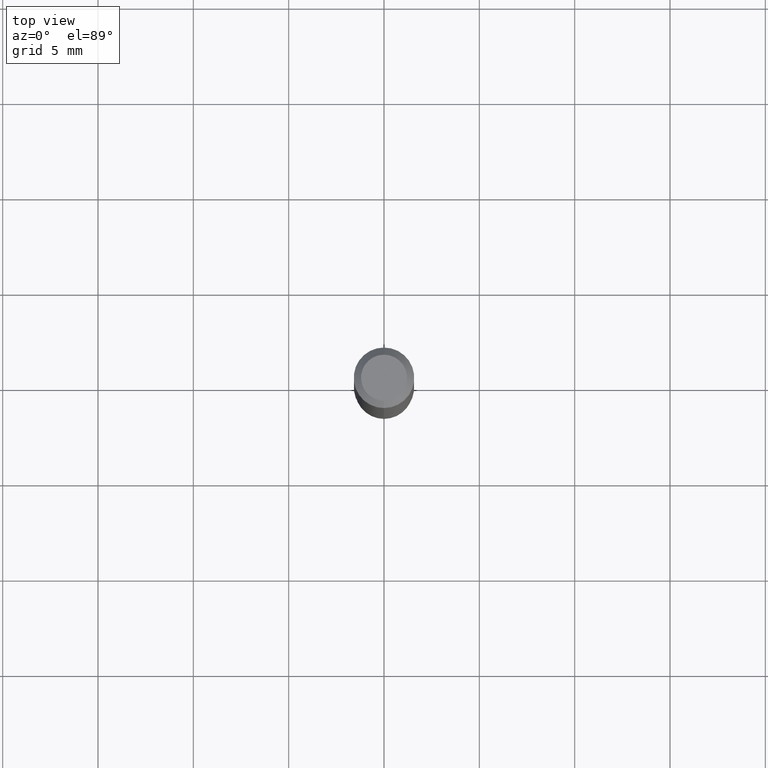
[diagram: clean part render]
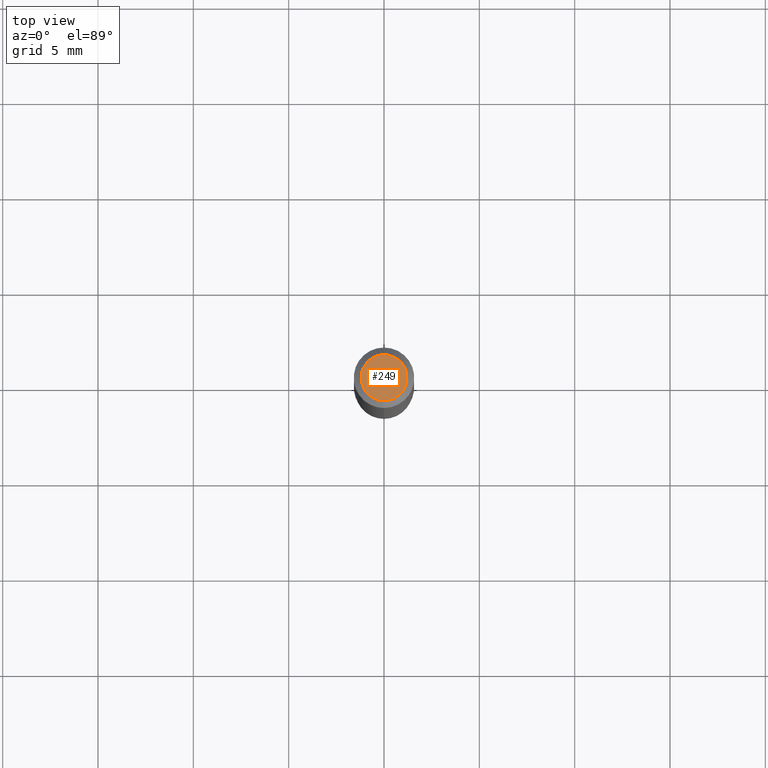
[diagram: same view with one face highlighted and labeled with its STEP entity id]
A machine part, top view. The second image highlights one B-rep face of the part: STEP entity #249.
In plain terms, the highlighted planar face has unit normal (0, -0, -1).
Its self-contained STEP definition (entity closure, byte-faithful):
#20 = ORIENTED_EDGE ( 'NONE', *, *, #26, .T. ) ;
#26 = EDGE_CURVE ( 'NONE', #509, #362, #169, .T. ) ;
#36 = CARTESIAN_POINT ( 'NONE',  ( 3.316907271900976096E-16, 0.04749999999999999362, -1.985973018849175399E-16 ) ) ;
#74 = FACE_OUTER_BOUND ( 'NONE', #118, .T. ) ;
#84 = DIRECTION ( 'NONE',  ( -2.445415257485203862E-29, 3.491558023629251863E-15, 1.000000000000000000 ) ) ;
#94 = CARTESIAN_POINT ( 'NONE',  ( -3.773273898774340269E-16, -0.04749999999999999362, 1.003524145973332999E-16 ) ) ;
#113 = PLANE ( 'NONE',  #214 ) ;
#118 = EDGE_LOOP ( 'NONE', ( #20, #477 ) ) ;
#126 = CARTESIAN_POINT ( 'NONE',  ( 1.601663642286483941E-45, -2.286851496596774819E-31, -6.549659152505615180E-17 ) ) ;
#169 = CIRCLE ( 'NONE', #258, 0.04749999999999999362 ) ;
#191 = DIRECTION ( 'NONE',  ( 6.982962677686265922E-15, 1.000000000000000000, -3.491558023629251863E-15 ) ) ;
#201 = CIRCLE ( 'NONE', #488, 0.04749999999999999362 ) ;
#207 = EDGE_CURVE ( 'NONE', #362, #509, #201, .T. ) ;
#214 = AXIS2_PLACEMENT_3D ( 'NONE', #36, #234, #191 ) ;
#234 = DIRECTION ( 'NONE',  ( 2.445415257485203581E-29, -3.491558023629251863E-15, -1.000000000000000000 ) ) ;
#242 = DIRECTION ( 'NONE',  ( -6.982962677686266711E-15, -1.000000000000000000, 3.491558023629252258E-15 ) ) ;
#249 = ADVANCED_FACE ( 'NONE', ( #74 ), #113, .F. ) ;
#258 = AXIS2_PLACEMENT_3D ( 'NONE', #126, #442, #406 ) ;
#312 = CARTESIAN_POINT ( 'NONE',  ( 3.840629472727447874E-16, 0.04749999999999999362, -2.313455976474456035E-16 ) ) ;
#362 = VERTEX_POINT ( 'NONE', #94 ) ;
#406 = DIRECTION ( 'NONE',  ( -6.982962677686266711E-15, -1.000000000000000000, 3.491558023629252258E-15 ) ) ;
#427 = CARTESIAN_POINT ( 'NONE',  ( 1.601663642286483941E-45, -2.286851496596774819E-31, -6.549659152505615180E-17 ) ) ;
#442 = DIRECTION ( 'NONE',  ( -2.445415257485203862E-29, 3.491558023629251863E-15, 1.000000000000000000 ) ) ;
#477 = ORIENTED_EDGE ( 'NONE', *, *, #207, .T. ) ;
#488 = AXIS2_PLACEMENT_3D ( 'NONE', #427, #84, #242 ) ;
#509 = VERTEX_POINT ( 'NONE', #312 ) ;